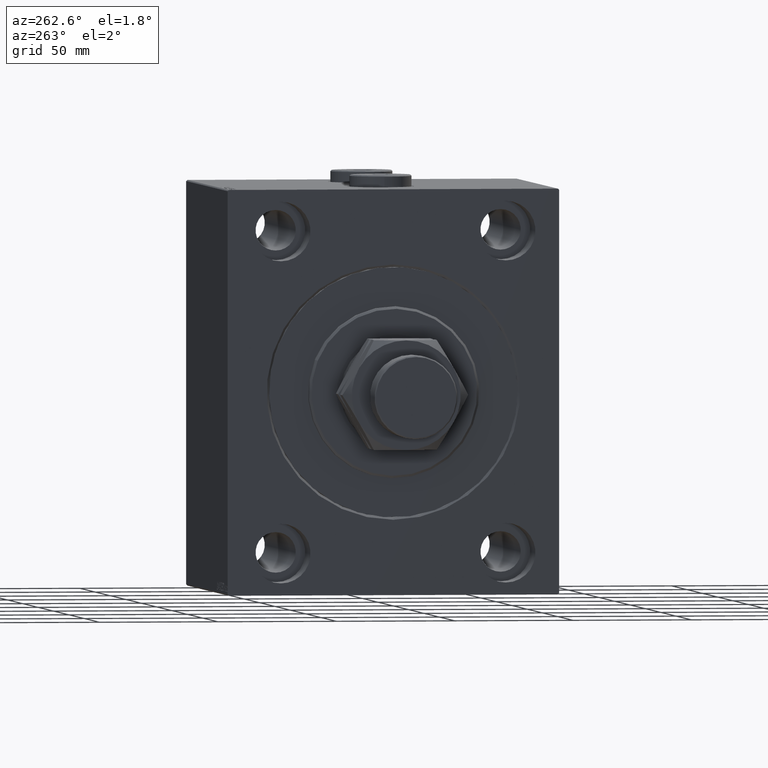
[diagram: clean part render]
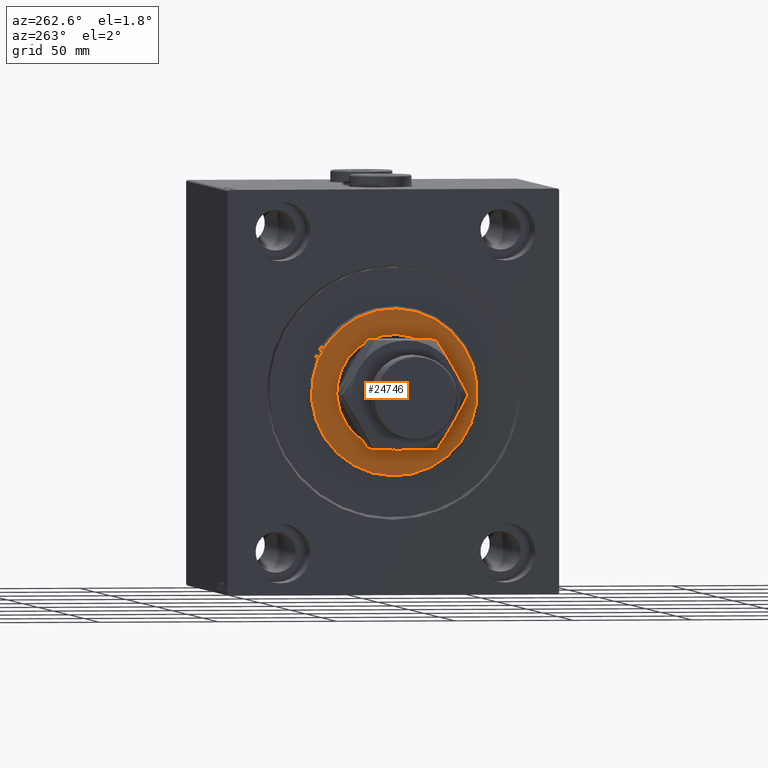
[diagram: same view with one face highlighted and labeled with its STEP entity id]
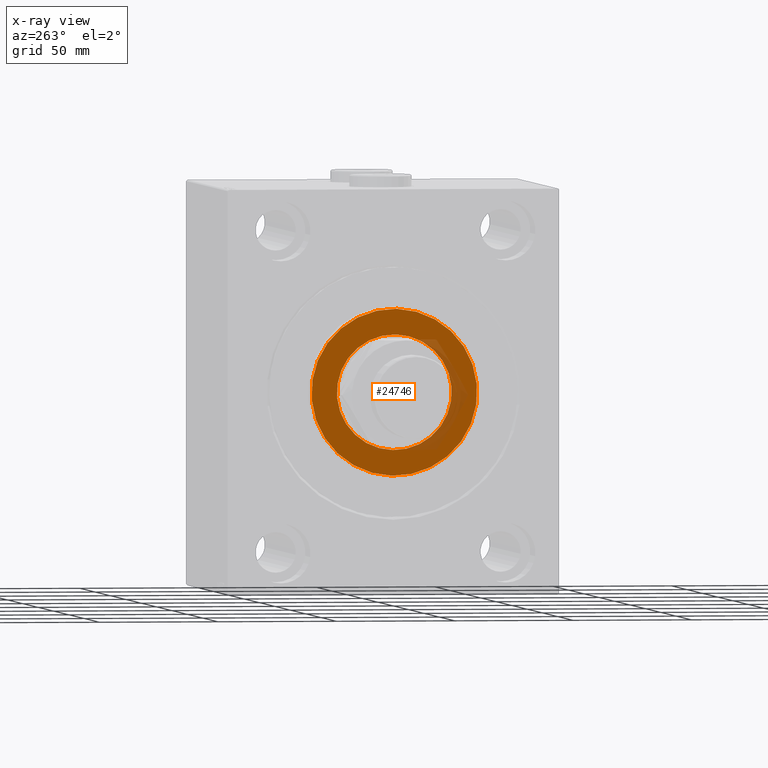
[diagram: x-ray of the same camera — body ghosted, the highlighted face saturated]
A machine part, auxiliary view. The second image highlights one B-rep face of the part: STEP entity #24746.
The next image is the same camera in x-ray: the body ghosted, the highlighted face saturated — about 13% of this face is hidden behind the body in this view.
In plain terms, the highlighted planar face has unit normal (-1, 0, 0).
Its self-contained STEP definition (entity closure, byte-faithful):
#252 = AXIS2_PLACEMENT_3D ( 'NONE', #26178, #43773, #11274 ) ;
#1616 = DIRECTION ( 'NONE',  ( -1.000000000000000000, 0.000000000000000000, -0.000000000000000000 ) ) ;
#1854 = DIRECTION ( 'NONE',  ( 0.000000000000000000, 0.000000000000000000, -1.000000000000000000 ) ) ;
#2147 = CIRCLE ( 'NONE', #15767, 24.25000000000000000 ) ;
#2667 = VERTEX_POINT ( 'NONE', #16509 ) ;
#3425 = EDGE_LOOP ( 'NONE', ( #5966, #18214 ) ) ;
#3985 = CARTESIAN_POINT ( 'NONE',  ( 3.000000000000000000, 4.347496136973104859E-15, -35.00000000000001421 ) ) ;
#4791 = CIRCLE ( 'NONE', #26690, 35.00000000000001421 ) ;
#5966 = ORIENTED_EDGE ( 'NONE', *, *, #8041, .T. ) ;
#7667 = EDGE_LOOP ( 'NONE', ( #28683, #27991 ) ) ;
#7899 = CARTESIAN_POINT ( 'NONE',  ( 3.000000000000000000, 0.000000000000000000, 0.000000000000000000 ) ) ;
#8041 = EDGE_CURVE ( 'NONE', #43871, #34429, #2147, .T. ) ;
#9822 = EDGE_CURVE ( 'NONE', #34429, #43871, #24129, .T. ) ;
#10624 = CIRCLE ( 'NONE', #24125, 35.00000000000001421 ) ;
#11274 = DIRECTION ( 'NONE',  ( 0.000000000000000000, 0.000000000000000000, -1.000000000000000000 ) ) ;
#11689 = DIRECTION ( 'NONE',  ( 0.000000000000000000, 0.000000000000000000, -1.000000000000000000 ) ) ;
#11749 = FACE_BOUND ( 'NONE', #3425, .T. ) ;
#12051 = DIRECTION ( 'NONE',  ( -1.000000000000000000, 0.000000000000000000, -0.000000000000000000 ) ) ;
#12592 = DIRECTION ( 'NONE',  ( 0.000000000000000000, 0.000000000000000000, -1.000000000000000000 ) ) ;
#14222 = EDGE_CURVE ( 'NONE', #15756, #2667, #10624, .T. ) ;
#15228 = DIRECTION ( 'NONE',  ( 1.000000000000000000, -0.000000000000000000, 0.000000000000000000 ) ) ;
#15756 = VERTEX_POINT ( 'NONE', #3985 ) ;
#15767 = AXIS2_PLACEMENT_3D ( 'NONE', #26713, #1616, #1854 ) ;
#16509 = CARTESIAN_POINT ( 'NONE',  ( 3.000000000000000000, 0.000000000000000000, 35.00000000000001421 ) ) ;
#18214 = ORIENTED_EDGE ( 'NONE', *, *, #9822, .T. ) ;
#21997 = CARTESIAN_POINT ( 'NONE',  ( 3.000000000000000000, 0.000000000000000000, 0.000000000000000000 ) ) ;
#22698 = DIRECTION ( 'NONE',  ( 0.000000000000000000, 0.000000000000000000, -1.000000000000000000 ) ) ;
#24125 = AXIS2_PLACEMENT_3D ( 'NONE', #45078, #44381, #12592 ) ;
#24129 = CIRCLE ( 'NONE', #45352, 24.25000000000000000 ) ;
#24746 = ADVANCED_FACE ( 'NONE', ( #29281, #11749 ), #36643, .T. ) ;
#26178 = CARTESIAN_POINT ( 'NONE',  ( 3.000000000000000000, 0.000000000000000000, 0.000000000000000000 ) ) ;
#26690 = AXIS2_PLACEMENT_3D ( 'NONE', #7899, #15228, #11689 ) ;
#26713 = CARTESIAN_POINT ( 'NONE',  ( 3.000000000000000000, 0.000000000000000000, 0.000000000000000000 ) ) ;
#27991 = ORIENTED_EDGE ( 'NONE', *, *, #14222, .T. ) ;
#28375 = CARTESIAN_POINT ( 'NONE',  ( 3.000000000000000000, 0.000000000000000000, 24.25000000000000000 ) ) ;
#28683 = ORIENTED_EDGE ( 'NONE', *, *, #42971, .T. ) ;
#29281 = FACE_OUTER_BOUND ( 'NONE', #7667, .T. ) ;
#34429 = VERTEX_POINT ( 'NONE', #42910 ) ;
#36643 = PLANE ( 'NONE',  #252 ) ;
#42910 = CARTESIAN_POINT ( 'NONE',  ( 3.000000000000000000, 2.969768487932331287E-15, -24.25000000000000000 ) ) ;
#42971 = EDGE_CURVE ( 'NONE', #2667, #15756, #4791, .T. ) ;
#43773 = DIRECTION ( 'NONE',  ( 1.000000000000000000, -0.000000000000000000, 0.000000000000000000 ) ) ;
#43871 = VERTEX_POINT ( 'NONE', #28375 ) ;
#44381 = DIRECTION ( 'NONE',  ( 1.000000000000000000, -0.000000000000000000, 0.000000000000000000 ) ) ;
#45078 = CARTESIAN_POINT ( 'NONE',  ( 3.000000000000000000, 0.000000000000000000, 0.000000000000000000 ) ) ;
#45352 = AXIS2_PLACEMENT_3D ( 'NONE', #21997, #12051, #22698 ) ;